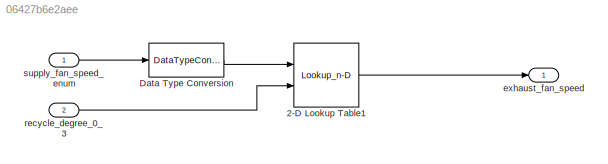
MODEL slx_06427b6e2aee
KIND model
CONFIG AbsTol = auto
CONFIG EnableMultiTasking = off
CONFIG FixedStep = auto
CONFIG MaxStep = auto
CONFIG MinStep = auto
CONFIG RelTol = 1e-3
CONFIG SampleTimeConstraint = Unconstrained
CONFIG SolverName = VariableStepAuto
CONFIG StartTime = 0.0
CONFIG StopTime = inf
BLOCK [Lookup_n-D] 2-D Lookup Table1
  BreakpointsForDimension1 = uint16([1,2,3]);
  BreakpointsForDimension2 = uint16([0,1,2,3]);
  ExtrapMethod = Clip
  InputPortMap = u0,u1
  InternalRulePriority = Speed
  Ports = [2, 1]
  RndMeth = Simplest
  Table = uint16(reshape([100,200,300,110,210,310,120,220,320,130,230,330],3,4));
BLOCK [DataTypeConversion] Data Type Conversion
  OutDataTypeStr = uint16
  RndMeth = Floor
  SaturateOnIntegerOverflow = off
BLOCK [Outport] exhaust_fan_speed
BLOCK [Inport] recycle_degree_0_3
  OutDataTypeStr = uint16
  Port = 2
BLOCK [Inport] supply_fan_speed_enum
  OutDataTypeStr = Enum: fan_speed_enum
LINE 2-D Lookup Table1:1 -> exhaust_fan_speed:1
LINE Data Type Conversion:1 -> 2-D Lookup Table1:1
LINE recycle_degree_0_3:1 -> 2-D Lookup Table1:2
LINE supply_fan_speed_enum:1 -> Data Type Conversion:1
